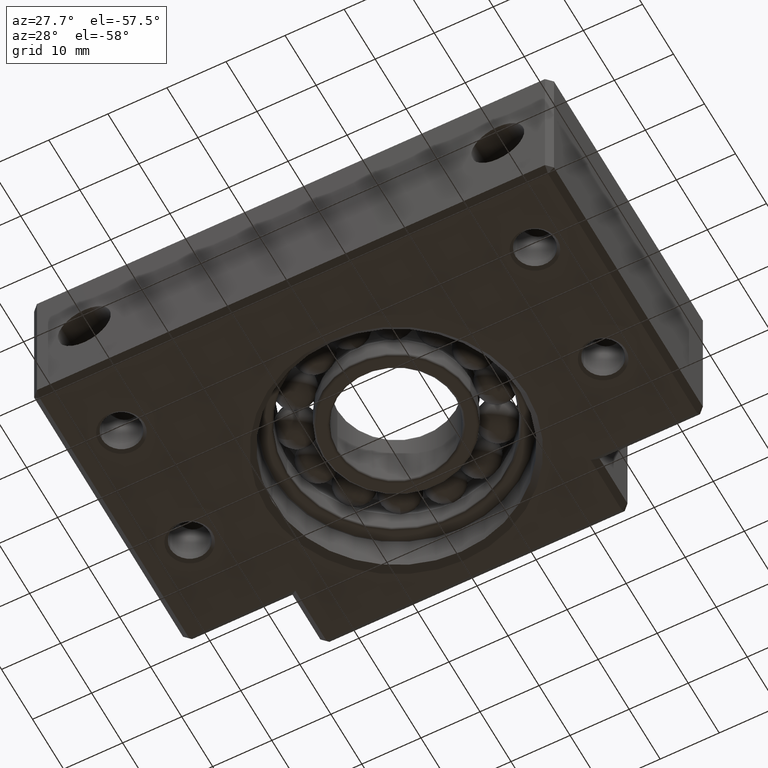
[diagram: clean part render]
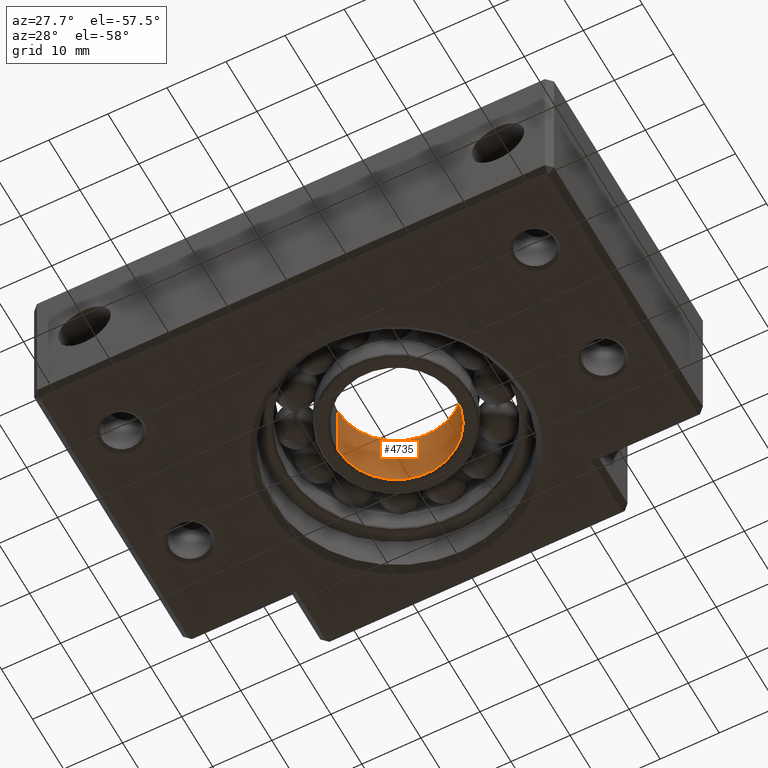
[diagram: same view with one face highlighted and labeled with its STEP entity id]
A machine part, auxiliary view. The second image highlights one B-rep face of the part: STEP entity #4735.
In plain terms, the highlighted cylindrical surface (partial cylindrical patch) has radius 10 mm, axis along (-0, -0, 1).
Its self-contained STEP definition (entity closure, byte-faithful):
#2673 = CARTESIAN_POINT ( 'NONE',  ( -9.999999999999985800, 34.00000000000000000, -5.400000000000002100 ) ) ;
#2680 = CARTESIAN_POINT ( 'NONE',  ( 10.00000000000001400, 34.00000000000000000, -5.400000000000002100 ) ) ;
#2698 = DIRECTION ( 'NONE',  ( 1.000000000000000000, 0.0000000000000000000, 0.0000000000000000000 ) ) ;
#2699 = DIRECTION ( 'NONE',  ( -0.0000000000000000000, -0.0000000000000000000, 1.000000000000000000 ) ) ;
#2700 = CARTESIAN_POINT ( 'NONE',  ( 1.377740456500814400E-014, 34.00000000000000000, -5.400000000000002100 ) ) ;
#2701 = AXIS2_PLACEMENT_3D ( 'NONE', #2700, #2699, #2698 ) ;
#2706 = CIRCLE ( 'NONE', #2701, 10.00000000000000000 ) ;
#2738 = CARTESIAN_POINT ( 'NONE',  ( -9.999999999999985800, 34.00000000000000000, 5.399999999999998600 ) ) ;
#2958 = CARTESIAN_POINT ( 'NONE',  ( 10.00000000000001400, 34.00000000000000000, 5.399999999999998600 ) ) ;
#2960 = DIRECTION ( 'NONE',  ( -0.0000000000000000000, -0.0000000000000000000, 1.000000000000000000 ) ) ;
#2961 = VECTOR ( 'NONE', #2960, 1000.000000000000000 ) ;
#2962 = CARTESIAN_POINT ( 'NONE',  ( 10.00000000000001400, 34.00000000000000000, 8.839432060501899000 ) ) ;
#2963 = LINE ( 'NONE', #2962, #2961 ) ;
#2986 = DIRECTION ( 'NONE',  ( -0.0000000000000000000, -0.0000000000000000000, 1.000000000000000000 ) ) ;
#2987 = VECTOR ( 'NONE', #2986, 1000.000000000000000 ) ;
#2988 = CARTESIAN_POINT ( 'NONE',  ( -9.999999999999985800, 34.00000000000000000, 8.839432060501899000 ) ) ;
#2989 = LINE ( 'NONE', #2988, #2987 ) ;
#3026 = DIRECTION ( 'NONE',  ( 1.000000000000000000, 0.0000000000000000000, 0.0000000000000000000 ) ) ;
#3027 = DIRECTION ( 'NONE',  ( -0.0000000000000000000, -0.0000000000000000000, 1.000000000000000000 ) ) ;
#3028 = CARTESIAN_POINT ( 'NONE',  ( 1.377740456500814400E-014, 34.00000000000000000, 5.399999999999998600 ) ) ;
#3029 = AXIS2_PLACEMENT_3D ( 'NONE', #3028, #3027, #3026 ) ;
#3034 = CIRCLE ( 'NONE', #3029, 10.00000000000000000 ) ;
#3061 = FACE_OUTER_BOUND ( 'NONE', #4726, .T. ) ;
#3062 = CYLINDRICAL_SURFACE ( 'NONE', #3122, 10.00000000000000000 ) ;
#3119 = DIRECTION ( 'NONE',  ( 1.000000000000000000, 0.0000000000000000000, 0.0000000000000000000 ) ) ;
#3120 = DIRECTION ( 'NONE',  ( -0.0000000000000000000, -0.0000000000000000000, 1.000000000000000000 ) ) ;
#3121 = CARTESIAN_POINT ( 'NONE',  ( 1.377740456500814400E-014, 34.00000000000000000, 8.839432060501899000 ) ) ;
#3122 = AXIS2_PLACEMENT_3D ( 'NONE', #3121, #3120, #3119 ) ;
#4525 = VERTEX_POINT ( 'NONE', #2680 ) ;
#4531 = VERTEX_POINT ( 'NONE', #2673 ) ;
#4544 = EDGE_CURVE ( 'NONE', #4525, #4531, #2706, .T. ) ;
#4562 = VERTEX_POINT ( 'NONE', #2738 ) ;
#4666 = EDGE_CURVE ( 'NONE', #4525, #4674, #2963, .T. ) ;
#4674 = VERTEX_POINT ( 'NONE', #2958 ) ;
#4683 = EDGE_CURVE ( 'NONE', #4531, #4562, #2989, .T. ) ;
#4712 = EDGE_CURVE ( 'NONE', #4674, #4562, #3034, .T. ) ;
#4723 = ORIENTED_EDGE ( 'NONE', *, *, #4712, .T. ) ;
#4725 = ORIENTED_EDGE ( 'NONE', *, *, #4544, .F. ) ;
#4726 = EDGE_LOOP ( 'NONE', ( #4729, #4725, #4727, #4723 ) ) ;
#4727 = ORIENTED_EDGE ( 'NONE', *, *, #4666, .T. ) ;
#4729 = ORIENTED_EDGE ( 'NONE', *, *, #4683, .F. ) ;
#4735 = ADVANCED_FACE ( 'NONE', ( #3061 ), #3062, .F. ) ;